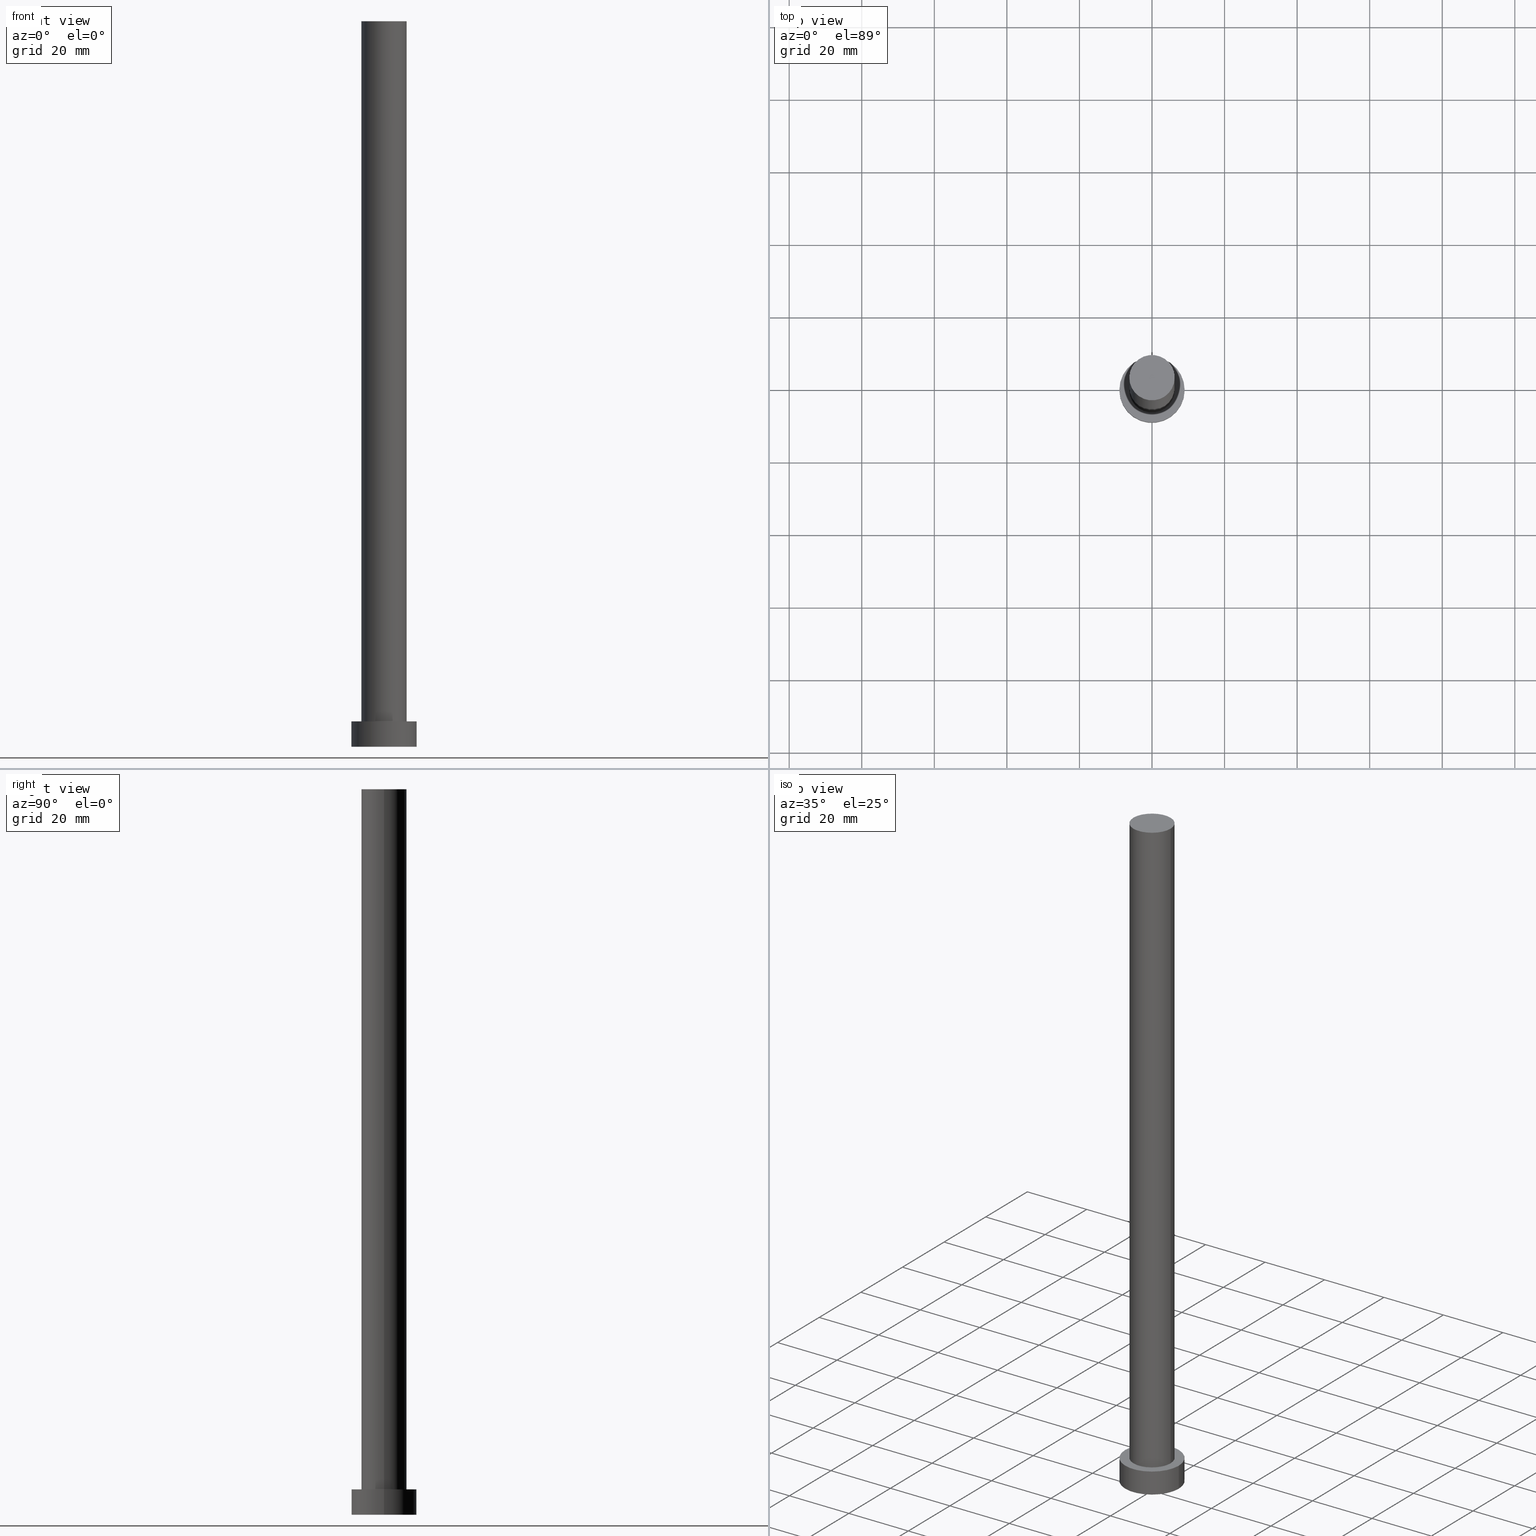
[diagram: canonical four-view strip — front | top / right | iso, engineering-drawing reading convention]
A machine part, canonical four-view strip (front | top / right | iso — engineering-drawing reading convention). The complete STEP part file that produces these views, byte-faithful:
ISO-10303-21;
HEADER;
FILE_DESCRIPTION (( 'STEP AP203' ),
    '1' );
FILE_NAME ('052c.STEP',
    '2023-02-13T10:18:15',
    ( '' ),
    ( '' ),
    'SwSTEP 2.0',
    'SolidWorks 2019',
    '' );
FILE_SCHEMA (( 'CONFIG_CONTROL_DESIGN' ));
ENDSEC;

DATA;
#1 = PRODUCT ( '052c', '052c', '', ( #90 ) ) ;
#2 = DIRECTION ( 'NONE',  ( 0.000000000000000000, 0.000000000000000000, 1.000000000000000000 ) ) ;
#3 =( LENGTH_UNIT ( ) NAMED_UNIT ( * ) SI_UNIT ( .MILLI., .METRE. ) );
#4 = AXIS2_PLACEMENT_3D ( 'NONE', #222, #186, #23 ) ;
#5 = CC_DESIGN_APPROVAL ( #180, ( #217 ) ) ;
#6 = ORIENTED_EDGE ( 'NONE', *, *, #29, .T. ) ;
#7 = CIRCLE ( 'NONE', #143, 9.000000000000000000 ) ;
#8 = ADVANCED_FACE ( 'NONE', ( #22, #67 ), #108, .T. ) ;
#9 = CIRCLE ( 'NONE', #234, 9.000000000000000000 ) ;
#10 = DIRECTION ( 'NONE',  ( 0.000000000000000000, 0.000000000000000000, 1.000000000000000000 ) ) ;
#11 = DIRECTION ( 'NONE',  ( -1.000000000000000000, 0.000000000000000000, 0.000000000000000000 ) ) ;
#12 = CARTESIAN_POINT ( 'NONE',  ( -6.250000000000000000, 0.000000000000000000, 7.000000000000000000 ) ) ;
#13 = FACE_OUTER_BOUND ( 'NONE', #148, .T. ) ;
#14 = AXIS2_PLACEMENT_3D ( 'NONE', #181, #10, #124 ) ;
#15 = COORDINATED_UNIVERSAL_TIME_OFFSET ( 1, 0, .AHEAD. ) ;
#16 = EDGE_LOOP ( 'NONE', ( #42, #254 ) ) ;
#17 = DIRECTION ( 'NONE',  ( -0.000000000000000000, -0.000000000000000000, -1.000000000000000000 ) ) ;
#18 = ADVANCED_FACE ( 'NONE', ( #111 ), #190, .T. ) ;
#19 = CARTESIAN_POINT ( 'NONE',  ( 9.000000000000000000, 1.102182119232617714E-15, 0.000000000000000000 ) ) ;
#20 = CARTESIAN_POINT ( 'NONE',  ( 0.000000000000000000, 0.000000000000000000, 0.000000000000000000 ) ) ;
#21 = AXIS2_PLACEMENT_3D ( 'NONE', #85, #196, #219 ) ;
#22 = FACE_BOUND ( 'NONE', #237, .T. ) ;
#23 = DIRECTION ( 'NONE',  ( 1.000000000000000000, 0.000000000000000000, -0.000000000000000000 ) ) ;
#24 = LOCAL_TIME ( 11, 18, 15.00000000000000000, #93 ) ;
#25 = EDGE_LOOP ( 'NONE', ( #244, #75, #113, #139 ) ) ;
#26 = DATE_AND_TIME ( #207, #122 ) ;
#27 = DIRECTION ( 'NONE',  ( 1.000000000000000000, 0.000000000000000000, 0.000000000000000000 ) ) ;
#28 = AXIS2_PLACEMENT_3D ( 'NONE', #189, #2, #145 ) ;
#29 = EDGE_CURVE ( 'NONE', #156, #79, #169, .T. ) ;
#30 = PERSON_AND_ORGANIZATION ( #172, #164 ) ;
#31 = APPROVAL_ROLE ( '' ) ;
#32 = ORIENTED_EDGE ( 'NONE', *, *, #126, .T. ) ;
#33 = DIRECTION ( 'NONE',  ( 1.000000000000000000, 0.000000000000000000, 0.000000000000000000 ) ) ;
#34 = CARTESIAN_POINT ( 'NONE',  ( -6.250000000000000000, 0.000000000000000000, 200.0000000000000000 ) ) ;
#35 = PLANE ( 'NONE',  #107 ) ;
#36 = CARTESIAN_POINT ( 'NONE',  ( 0.000000000000000000, 0.000000000000000000, 0.000000000000000000 ) ) ;
#37 = CLOSED_SHELL ( 'NONE', ( #242, #62, #212, #8, #41, #149, #18 ) ) ;
#38 = EDGE_CURVE ( 'NONE', #82, #49, #72, .T. ) ;
#39 = DIRECTION ( 'NONE',  ( 1.000000000000000000, 0.000000000000000000, 0.000000000000000000 ) ) ;
#40 = DATE_AND_TIME ( #218, #118 ) ;
#41 = ADVANCED_FACE ( 'NONE', ( #13 ), #35, .F. ) ;
#42 = ORIENTED_EDGE ( 'NONE', *, *, #84, .T. ) ;
#43 = AXIS2_PLACEMENT_3D ( 'NONE', #236, #238, #114 ) ;
#44 = LOCAL_TIME ( 11, 18, 15.00000000000000000, #173 ) ;
#45 = CARTESIAN_POINT ( 'NONE',  ( 0.000000000000000000, 0.000000000000000000, 7.000000000000000000 ) ) ;
#46 = ORIENTED_EDGE ( 'NONE', *, *, #204, .F. ) ;
#47 = CYLINDRICAL_SURFACE ( 'NONE', #178, 6.250000000000000000 ) ;
#48 = CC_DESIGN_DATE_AND_TIME_ASSIGNMENT ( #26, #170, ( #88 ) ) ;
#49 = VERTEX_POINT ( 'NONE', #12 ) ;
#50 = FACE_OUTER_BOUND ( 'NONE', #239, .T. ) ;
#51 = APPROVAL_DATE_TIME ( #176, #221 ) ;
#52 = COORDINATED_UNIVERSAL_TIME_OFFSET ( 1, 0, .AHEAD. ) ;
#53 = CARTESIAN_POINT ( 'NONE',  ( -6.250000000000000000, 0.000000000000000000, 200.0000000000000000 ) ) ;
#54 = APPROVAL_PERSON_ORGANIZATION ( #142, #180, #31 ) ;
#55 = APPLICATION_PROTOCOL_DEFINITION ( 'international standard', 'config_control_design', 1994, #240 ) ;
#56 = CC_DESIGN_DATE_AND_TIME_ASSIGNMENT ( #150, #213, ( #214 ) ) ;
#57 = ORIENTED_EDGE ( 'NONE', *, *, #74, .T. ) ;
#58 = EDGE_LOOP ( 'NONE', ( #191, #6 ) ) ;
#59 = EDGE_CURVE ( 'NONE', #156, #162, #103, .T. ) ;
#60 = ORIENTED_EDGE ( 'NONE', *, *, #59, .T. ) ;
#61 = VECTOR ( 'NONE', #229, 1000.000000000000000 ) ;
#62 = ADVANCED_FACE ( 'NONE', ( #163 ), #210, .T. ) ;
#63 =( NAMED_UNIT ( * ) SI_UNIT ( $, .STERADIAN. ) SOLID_ANGLE_UNIT ( ) );
#64 = DIRECTION ( 'NONE',  ( -1.000000000000000000, 0.000000000000000000, 0.000000000000000000 ) ) ;
#65 = ORIENTED_EDGE ( 'NONE', *, *, #184, .T. ) ;
#66 = APPLICATION_PROTOCOL_DEFINITION ( 'international standard', 'config_control_design', 1994, #177 ) ;
#67 = FACE_OUTER_BOUND ( 'NONE', #58, .T. ) ;
#68 = ORIENTED_EDGE ( 'NONE', *, *, #38, .F. ) ;
#69 = DIRECTION ( 'NONE',  ( 1.000000000000000000, 0.000000000000000000, 0.000000000000000000 ) ) ;
#70 = SECURITY_CLASSIFICATION_LEVEL ( 'unclassified' ) ;
#71 = PERSON_AND_ORGANIZATION ( #172, #164 ) ;
#72 = CIRCLE ( 'NONE', #14, 6.250000000000000000 ) ;
#73 = ORIENTED_EDGE ( 'NONE', *, *, #184, .F. ) ;
#74 = EDGE_CURVE ( 'NONE', #79, #165, #209, .T. ) ;
#75 = ORIENTED_EDGE ( 'NONE', *, *, #91, .T. ) ;
#76 = UNCERTAINTY_MEASURE_WITH_UNIT (LENGTH_MEASURE( 1.000000000000000082E-05 ), #3, 'distance_accuracy_value', 'NONE');
#77 = EDGE_LOOP ( 'NONE', ( #98, #101, #32, #131 ) ) ;
#78 = DIRECTION ( 'NONE',  ( 1.000000000000000000, 0.000000000000000000, 0.000000000000000000 ) ) ;
#79 = VERTEX_POINT ( 'NONE', #248 ) ;
#80 = DIRECTION ( 'NONE',  ( -0.000000000000000000, -0.000000000000000000, -1.000000000000000000 ) ) ;
#81 =( NAMED_UNIT ( * ) PLANE_ANGLE_UNIT ( ) SI_UNIT ( $, .RADIAN. ) );
#82 = VERTEX_POINT ( 'NONE', #119 ) ;
#83 = AXIS2_PLACEMENT_3D ( 'NONE', #182, #255, #78 ) ;
#84 = EDGE_CURVE ( 'NONE', #92, #243, #147, .T. ) ;
#85 = CARTESIAN_POINT ( 'NONE',  ( 0.000000000000000000, 0.000000000000000000, 200.0000000000000000 ) ) ;
#86 = DIRECTION ( 'NONE',  ( 0.000000000000000000, 0.000000000000000000, 1.000000000000000000 ) ) ;
#87 = CALENDAR_DATE ( 2023, 13, 2 ) ;
#88 = PRODUCT_DEFINITION ( 'NEZN�M�', '', #217, #105 ) ;
#89 = VECTOR ( 'NONE', #17, 1000.000000000000000 ) ;
#90 = MECHANICAL_CONTEXT ( 'NONE', #177, 'mechanical' ) ;
#91 = EDGE_CURVE ( 'NONE', #243, #82, #171, .T. ) ;
#92 = VERTEX_POINT ( 'NONE', #53 ) ;
#93 = COORDINATED_UNIVERSAL_TIME_OFFSET ( 1, 0, .AHEAD. ) ;
#94 = PERSON_AND_ORGANIZATION_ROLE ( 'design_supplier' ) ;
#95 = DIRECTION ( 'NONE',  ( 0.000000000000000000, 0.000000000000000000, 1.000000000000000000 ) ) ;
#96 = PERSON_AND_ORGANIZATION ( #172, #164 ) ;
#97 = CARTESIAN_POINT ( 'NONE',  ( -9.000000000000000000, 0.000000000000000000, 7.000000000000000000 ) ) ;
#98 = ORIENTED_EDGE ( 'NONE', *, *, #91, .F. ) ;
#99 = APPROVAL_DATE_TIME ( #40, #180 ) ;
#100 = AXIS2_PLACEMENT_3D ( 'NONE', #252, #208, #27 ) ;
#101 = ORIENTED_EDGE ( 'NONE', *, *, #84, .F. ) ;
#102 = CYLINDRICAL_SURFACE ( 'NONE', #112, 6.250000000000000000 ) ;
#103 = LINE ( 'NONE', #192, #154 ) ;
#104 = DIRECTION ( 'NONE',  ( 1.000000000000000000, 0.000000000000000000, 0.000000000000000000 ) ) ;
#105 = DESIGN_CONTEXT ( 'detailed design', #240, 'design' ) ;
#106 = CC_DESIGN_PERSON_AND_ORGANIZATION_ASSIGNMENT ( #246, #94, ( #217 ) ) ;
#107 = AXIS2_PLACEMENT_3D ( 'NONE', #179, #95, #120 ) ;
#108 = PLANE ( 'NONE',  #4 ) ;
#109 = ADVANCED_BREP_SHAPE_REPRESENTATION ( '052c', ( #227, #199 ), #206 ) ;
#110 = DIRECTION ( 'NONE',  ( -0.000000000000000000, -0.000000000000000000, -1.000000000000000000 ) ) ;
#111 = FACE_OUTER_BOUND ( 'NONE', #16, .T. ) ;
#112 = AXIS2_PLACEMENT_3D ( 'NONE', #144, #220, #121 ) ;
#113 = ORIENTED_EDGE ( 'NONE', *, *, #38, .T. ) ;
#114 = DIRECTION ( 'NONE',  ( 1.000000000000000000, 0.000000000000000000, 0.000000000000000000 ) ) ;
#115 = PERSON_AND_ORGANIZATION ( #172, #164 ) ;
#116 = DIRECTION ( 'NONE',  ( -0.000000000000000000, -0.000000000000000000, -1.000000000000000000 ) ) ;
#117 = PERSON_AND_ORGANIZATION_ROLE ( 'creator' ) ;
#118 = LOCAL_TIME ( 11, 18, 15.00000000000000000, #15 ) ;
#119 = CARTESIAN_POINT ( 'NONE',  ( 6.250000000000000000, 7.654042494670957606E-16, 7.000000000000000000 ) ) ;
#120 = DIRECTION ( 'NONE',  ( 1.000000000000000000, 0.000000000000000000, -0.000000000000000000 ) ) ;
#121 = DIRECTION ( 'NONE',  ( -1.000000000000000000, 0.000000000000000000, 0.000000000000000000 ) ) ;
#122 = LOCAL_TIME ( 11, 18, 15.00000000000000000, #52 ) ;
#123 = DIRECTION ( 'NONE',  ( 0.000000000000000000, 0.000000000000000000, 1.000000000000000000 ) ) ;
#124 = DIRECTION ( 'NONE',  ( 1.000000000000000000, 0.000000000000000000, 0.000000000000000000 ) ) ;
#125 = DIRECTION ( 'NONE',  ( 0.000000000000000000, 0.000000000000000000, 1.000000000000000000 ) ) ;
#126 = EDGE_CURVE ( 'NONE', #92, #49, #193, .T. ) ;
#127 = ORIENTED_EDGE ( 'NONE', *, *, #161, .T. ) ;
#128 = CARTESIAN_POINT ( 'NONE',  ( 9.000000000000000000, 1.102182119232617714E-15, 7.000000000000000000 ) ) ;
#129 = AXIS2_PLACEMENT_3D ( 'NONE', #137, #211, #11 ) ;
#130 = DIRECTION ( 'NONE',  ( -0.000000000000000000, -0.000000000000000000, -1.000000000000000000 ) ) ;
#131 = ORIENTED_EDGE ( 'NONE', *, *, #204, .T. ) ;
#132 = APPROVAL_PERSON_ORGANIZATION ( #96, #221, #251 ) ;
#133 = FACE_OUTER_BOUND ( 'NONE', #25, .T. ) ;
#134 = SHAPE_DEFINITION_REPRESENTATION ( #250, #109 ) ;
#135 = CC_DESIGN_PERSON_AND_ORGANIZATION_ASSIGNMENT ( #231, #117, ( #217 ) ) ;
#136 = APPROVAL_ROLE ( '' ) ;
#137 = CARTESIAN_POINT ( 'NONE',  ( 0.000000000000000000, 0.000000000000000000, 7.000000000000000000 ) ) ;
#138 = CALENDAR_DATE ( 2023, 13, 2 ) ;
#139 = ORIENTED_EDGE ( 'NONE', *, *, #126, .F. ) ;
#140 = CARTESIAN_POINT ( 'NONE',  ( -9.000000000000000000, 0.000000000000000000, 0.000000000000000000 ) ) ;
#141 = ORIENTED_EDGE ( 'NONE', *, *, #59, .F. ) ;
#142 = PERSON_AND_ORGANIZATION ( #172, #164 ) ;
#143 = AXIS2_PLACEMENT_3D ( 'NONE', #36, #233, #104 ) ;
#144 = CARTESIAN_POINT ( 'NONE',  ( 0.000000000000000000, 0.000000000000000000, 200.0000000000000000 ) ) ;
#145 = DIRECTION ( 'NONE',  ( 1.000000000000000000, 0.000000000000000000, 0.000000000000000000 ) ) ;
#146 = CARTESIAN_POINT ( 'NONE',  ( 0.000000000000000000, 0.000000000000000000, 200.0000000000000000 ) ) ;
#147 = CIRCLE ( 'NONE', #100, 6.250000000000000000 ) ;
#148 = EDGE_LOOP ( 'NONE', ( #224, #73 ) ) ;
#149 = ADVANCED_FACE ( 'NONE', ( #235 ), #102, .T. ) ;
#150 = DATE_AND_TIME ( #138, #44 ) ;
#151 = PERSON_AND_ORGANIZATION_ROLE ( 'design_owner' ) ;
#152 = CARTESIAN_POINT ( 'NONE',  ( 6.250000000000000000, 7.654042494670957606E-16, 200.0000000000000000 ) ) ;
#153 = AXIS2_PLACEMENT_3D ( 'NONE', #45, #130, #185 ) ;
#154 = VECTOR ( 'NONE', #110, 1000.000000000000000 ) ;
#155 = CIRCLE ( 'NONE', #83, 6.250000000000000000 ) ;
#156 = VERTEX_POINT ( 'NONE', #128 ) ;
#157 = PERSON_AND_ORGANIZATION_ROLE ( 'classification_officer' ) ;
#158 = APPROVAL ( #249, 'NEUR�EN�' ) ;
#159 = CIRCLE ( 'NONE', #43, 9.000000000000000000 ) ;
#160 = CC_DESIGN_SECURITY_CLASSIFICATION ( #214, ( #217 ) ) ;
#161 = EDGE_CURVE ( 'NONE', #165, #162, #9, .T. ) ;
#162 = VERTEX_POINT ( 'NONE', #19 ) ;
#163 = FACE_OUTER_BOUND ( 'NONE', #187, .T. ) ;
#164 = ORGANIZATION ( 'NEUR�EN�', 'NEUR�EN�', '' ) ;
#165 = VERTEX_POINT ( 'NONE', #140 ) ;
#166 = CC_DESIGN_APPROVAL ( #221, ( #214 ) ) ;
#167 = CC_DESIGN_PERSON_AND_ORGANIZATION_ASSIGNMENT ( #194, #157, ( #214 ) ) ;
#168 = DATE_AND_TIME ( #87, #24 ) ;
#169 = CIRCLE ( 'NONE', #183, 9.000000000000000000 ) ;
#170 = DATE_TIME_ROLE ( 'creation_date' ) ;
#171 = LINE ( 'NONE', #152, #61 ) ;
#172 = PERSON ( 'NEUR�EN�', 'NEUR�EN�', 'NEUR�EN�', ('NEUR�EN�'), ('NEUR�EN�'), ('NEUR�EN�') ) ;
#173 = COORDINATED_UNIVERSAL_TIME_OFFSET ( 1, 0, .AHEAD. ) ;
#174 = PRODUCT_RELATED_PRODUCT_CATEGORY ( 'detail', '', ( #1 ) ) ;
#175 = CARTESIAN_POINT ( 'NONE',  ( 0.000000000000000000, 0.000000000000000000, 7.000000000000000000 ) ) ;
#176 = DATE_AND_TIME ( #232, #253 ) ;
#177 = APPLICATION_CONTEXT ( 'configuration controlled 3d designs of mechanical parts and assemblies' ) ;
#178 = AXIS2_PLACEMENT_3D ( 'NONE', #146, #80, #64 ) ;
#179 = CARTESIAN_POINT ( 'NONE',  ( 0.000000000000000000, 0.000000000000000000, 0.000000000000000000 ) ) ;
#180 = APPROVAL ( #216, 'NEUR�EN�' ) ;
#181 = CARTESIAN_POINT ( 'NONE',  ( 0.000000000000000000, 0.000000000000000000, 7.000000000000000000 ) ) ;
#182 = CARTESIAN_POINT ( 'NONE',  ( 0.000000000000000000, 0.000000000000000000, 7.000000000000000000 ) ) ;
#183 = AXIS2_PLACEMENT_3D ( 'NONE', #175, #123, #33 ) ;
#184 = EDGE_CURVE ( 'NONE', #162, #165, #7, .T. ) ;
#185 = DIRECTION ( 'NONE',  ( -1.000000000000000000, 0.000000000000000000, 0.000000000000000000 ) ) ;
#186 = DIRECTION ( 'NONE',  ( 0.000000000000000000, 0.000000000000000000, 1.000000000000000000 ) ) ;
#187 = EDGE_LOOP ( 'NONE', ( #203, #60, #65, #205 ) ) ;
#188 = CC_DESIGN_APPROVAL ( #158, ( #88 ) ) ;
#189 = CARTESIAN_POINT ( 'NONE',  ( 0.000000000000000000, 0.000000000000000000, 200.0000000000000000 ) ) ;
#190 = PLANE ( 'NONE',  #21 ) ;
#191 = ORIENTED_EDGE ( 'NONE', *, *, #215, .T. ) ;
#192 = CARTESIAN_POINT ( 'NONE',  ( 9.000000000000000000, 1.102182119232617714E-15, 7.000000000000000000 ) ) ;
#193 = LINE ( 'NONE', #34, #89 ) ;
#194 = PERSON_AND_ORGANIZATION ( #172, #164 ) ;
#195 = ORIENTED_EDGE ( 'NONE', *, *, #215, .F. ) ;
#196 = DIRECTION ( 'NONE',  ( 0.000000000000000000, 0.000000000000000000, 1.000000000000000000 ) ) ;
#197 = APPROVAL_STATUS ( 'not_yet_approved' ) ;
#198 = CC_DESIGN_PERSON_AND_ORGANIZATION_ASSIGNMENT ( #115, #151, ( #1 ) ) ;
#199 = AXIS2_PLACEMENT_3D ( 'NONE', #201, #86, #69 ) ;
#200 = VECTOR ( 'NONE', #116, 1000.000000000000000 ) ;
#201 = CARTESIAN_POINT ( 'NONE',  ( 0.000000000000000000, 0.000000000000000000, 0.000000000000000000 ) ) ;
#202 = CARTESIAN_POINT ( 'NONE',  ( 6.250000000000000000, 7.654042494670957606E-16, 200.0000000000000000 ) ) ;
#203 = ORIENTED_EDGE ( 'NONE', *, *, #29, .F. ) ;
#204 = EDGE_CURVE ( 'NONE', #49, #82, #155, .T. ) ;
#205 = ORIENTED_EDGE ( 'NONE', *, *, #74, .F. ) ;
#206 =( GEOMETRIC_REPRESENTATION_CONTEXT ( 3 ) GLOBAL_UNCERTAINTY_ASSIGNED_CONTEXT ( ( #76 ) ) GLOBAL_UNIT_ASSIGNED_CONTEXT ( ( #3, #81, #63 ) ) REPRESENTATION_CONTEXT ( 'NONE', 'WORKASPACE' ) );
#207 = CALENDAR_DATE ( 2023, 13, 2 ) ;
#208 = DIRECTION ( 'NONE',  ( 0.000000000000000000, 0.000000000000000000, 1.000000000000000000 ) ) ;
#209 = LINE ( 'NONE', #97, #200 ) ;
#210 = CYLINDRICAL_SURFACE ( 'NONE', #129, 9.000000000000000000 ) ;
#211 = DIRECTION ( 'NONE',  ( -0.000000000000000000, -0.000000000000000000, -1.000000000000000000 ) ) ;
#212 = ADVANCED_FACE ( 'NONE', ( #50 ), #245, .T. ) ;
#213 = DATE_TIME_ROLE ( 'classification_date' ) ;
#214 = SECURITY_CLASSIFICATION ( '', '', #70 ) ;
#215 = EDGE_CURVE ( 'NONE', #79, #156, #159, .T. ) ;
#216 = APPROVAL_STATUS ( 'not_yet_approved' ) ;
#217 = PRODUCT_DEFINITION_FORMATION_WITH_SPECIFIED_SOURCE ( 'LIBOVOLN�', '', #1, .NOT_KNOWN. ) ;
#218 = CALENDAR_DATE ( 2023, 13, 2 ) ;
#219 = DIRECTION ( 'NONE',  ( 1.000000000000000000, 0.000000000000000000, -0.000000000000000000 ) ) ;
#220 = DIRECTION ( 'NONE',  ( -0.000000000000000000, -0.000000000000000000, -1.000000000000000000 ) ) ;
#221 = APPROVAL ( #197, 'NEUR�EN�' ) ;
#222 = CARTESIAN_POINT ( 'NONE',  ( 0.000000000000000000, 0.000000000000000000, 7.000000000000000000 ) ) ;
#223 = CC_DESIGN_PERSON_AND_ORGANIZATION_ASSIGNMENT ( #71, #228, ( #88 ) ) ;
#224 = ORIENTED_EDGE ( 'NONE', *, *, #161, .F. ) ;
#225 = COORDINATED_UNIVERSAL_TIME_OFFSET ( 1, 0, .AHEAD. ) ;
#226 = EDGE_CURVE ( 'NONE', #243, #92, #241, .T. ) ;
#227 = MANIFOLD_SOLID_BREP ( 'P�idat vysunut�m3', #37 ) ;
#228 = PERSON_AND_ORGANIZATION_ROLE ( 'creator' ) ;
#229 = DIRECTION ( 'NONE',  ( -0.000000000000000000, -0.000000000000000000, -1.000000000000000000 ) ) ;
#230 = APPROVAL_PERSON_ORGANIZATION ( #30, #158, #136 ) ;
#231 = PERSON_AND_ORGANIZATION ( #172, #164 ) ;
#232 = CALENDAR_DATE ( 2023, 13, 2 ) ;
#233 = DIRECTION ( 'NONE',  ( 0.000000000000000000, 0.000000000000000000, 1.000000000000000000 ) ) ;
#234 = AXIS2_PLACEMENT_3D ( 'NONE', #20, #125, #39 ) ;
#235 = FACE_OUTER_BOUND ( 'NONE', #77, .T. ) ;
#236 = CARTESIAN_POINT ( 'NONE',  ( 0.000000000000000000, 0.000000000000000000, 7.000000000000000000 ) ) ;
#237 = EDGE_LOOP ( 'NONE', ( #46, #68 ) ) ;
#238 = DIRECTION ( 'NONE',  ( 0.000000000000000000, 0.000000000000000000, 1.000000000000000000 ) ) ;
#239 = EDGE_LOOP ( 'NONE', ( #141, #195, #57, #127 ) ) ;
#240 = APPLICATION_CONTEXT ( 'configuration controlled 3d designs of mechanical parts and assemblies' ) ;
#241 = CIRCLE ( 'NONE', #28, 6.250000000000000000 ) ;
#242 = ADVANCED_FACE ( 'NONE', ( #133 ), #47, .T. ) ;
#243 = VERTEX_POINT ( 'NONE', #202 ) ;
#244 = ORIENTED_EDGE ( 'NONE', *, *, #226, .F. ) ;
#245 = CYLINDRICAL_SURFACE ( 'NONE', #153, 9.000000000000000000 ) ;
#246 = PERSON_AND_ORGANIZATION ( #172, #164 ) ;
#247 = APPROVAL_DATE_TIME ( #168, #158 ) ;
#248 = CARTESIAN_POINT ( 'NONE',  ( -9.000000000000000000, 0.000000000000000000, 7.000000000000000000 ) ) ;
#249 = APPROVAL_STATUS ( 'not_yet_approved' ) ;
#250 = PRODUCT_DEFINITION_SHAPE ( 'NONE', 'NONE',  #88 ) ;
#251 = APPROVAL_ROLE ( '' ) ;
#252 = CARTESIAN_POINT ( 'NONE',  ( 0.000000000000000000, 0.000000000000000000, 200.0000000000000000 ) ) ;
#253 = LOCAL_TIME ( 11, 18, 15.00000000000000000, #225 ) ;
#254 = ORIENTED_EDGE ( 'NONE', *, *, #226, .T. ) ;
#255 = DIRECTION ( 'NONE',  ( 0.000000000000000000, 0.000000000000000000, 1.000000000000000000 ) ) ;
ENDSEC;
END-ISO-10303-21;
